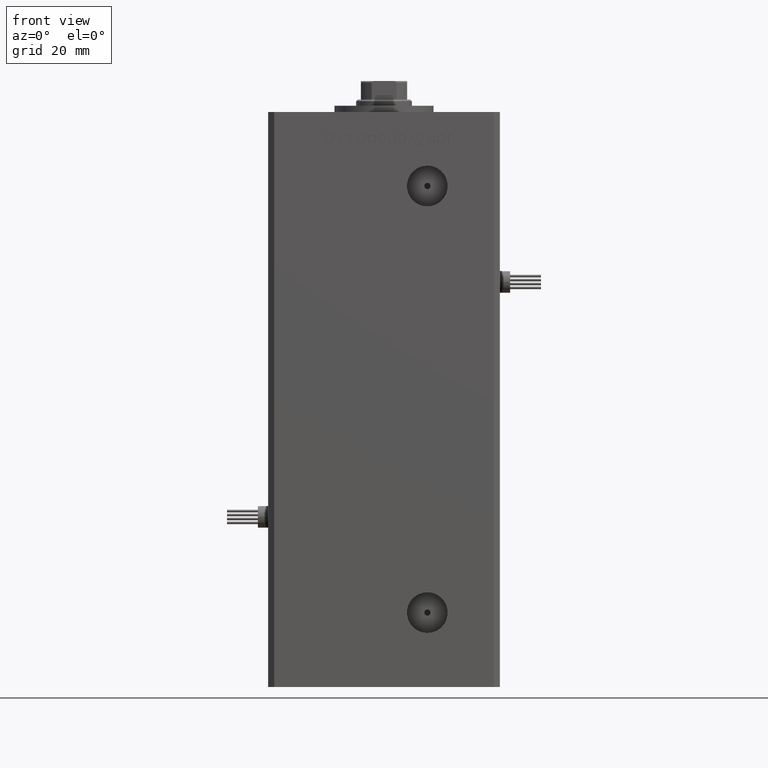
[diagram: clean part render]
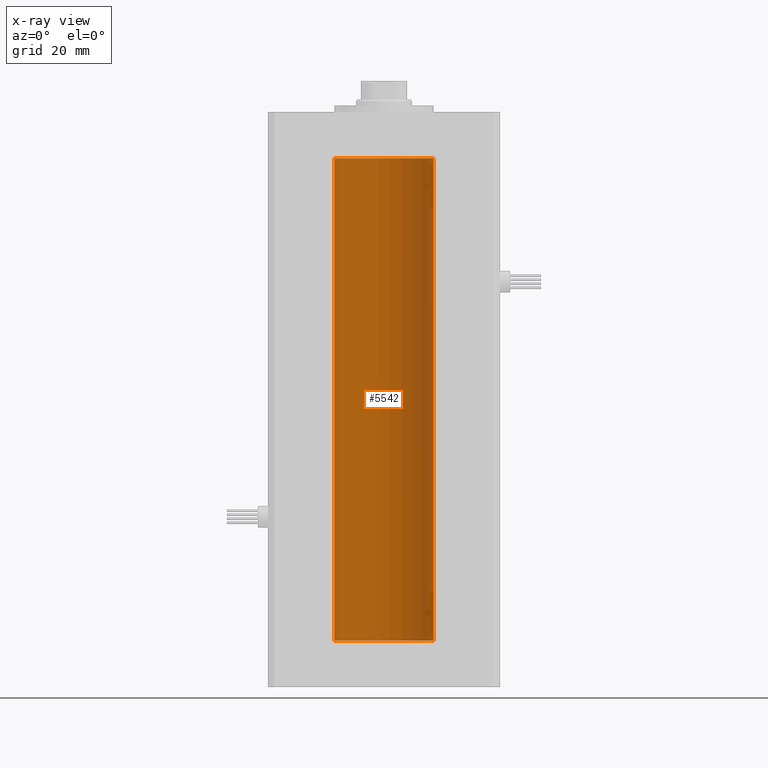
[diagram: x-ray — body ghosted, one internal face saturated and labeled with its STEP entity id]
A machine part, front view, then the same camera in x-ray: the body is ghosted and one INTERNAL B-rep face — a face not visible from any outside direction — is saturated and labeled: STEP entity #5542.
In plain terms, the highlighted cylindrical surface (partial cylindrical patch) has radius 16 mm, axis along (-0, -0, -1).
Its self-contained STEP definition (entity closure, byte-faithful):
#2502 = EDGE_CURVE ( 'NONE', #44289, #28513, #19287, .T. ) ;
#5491 = CARTESIAN_POINT ( 'NONE',  ( 0.000000000000000000, 0.000000000000000000, 156.0000000000000000 ) ) ;
#5542 = ADVANCED_FACE ( 'NONE', ( #35645 ), #9686, .F. ) ;
#6962 = CARTESIAN_POINT ( 'NONE',  ( 0.000000000000000000, 0.000000000000000000, 156.0000000000000000 ) ) ;
#8902 = VECTOR ( 'NONE', #17369, 1000.000000000000000 ) ;
#9000 = CARTESIAN_POINT ( 'NONE',  ( -16.00000000000000000, 0.000000000000000000, 156.0000000000000000 ) ) ;
#9006 = DIRECTION ( 'NONE',  ( 1.000000000000000000, 0.000000000000000000, 0.000000000000000000 ) ) ;
#9686 = CYLINDRICAL_SURFACE ( 'NONE', #54363, 16.00000000000000000 ) ;
#10046 = DIRECTION ( 'NONE',  ( -0.000000000000000000, 0.000000000000000000, 1.000000000000000000 ) ) ;
#14491 = DIRECTION ( 'NONE',  ( 1.000000000000000000, 0.000000000000000000, 0.000000000000000000 ) ) ;
#16311 = AXIS2_PLACEMENT_3D ( 'NONE', #6962, #10046, #14491 ) ;
#17088 = CARTESIAN_POINT ( 'NONE',  ( -16.00000000000000000, 0.000000000000000000, 156.0000000000000000 ) ) ;
#17369 = DIRECTION ( 'NONE',  ( -0.000000000000000000, -0.000000000000000000, -1.000000000000000000 ) ) ;
#18909 = CARTESIAN_POINT ( 'NONE',  ( 16.00000000000000000, 1.959434878635765131E-15, 156.0000000000000000 ) ) ;
#19065 = ORIENTED_EDGE ( 'NONE', *, *, #2502, .F. ) ;
#19287 = LINE ( 'NONE', #52533, #35653 ) ;
#21869 = ORIENTED_EDGE ( 'NONE', *, *, #43427, .T. ) ;
#22043 = CIRCLE ( 'NONE', #28299, 16.00000000000000000 ) ;
#22068 = ORIENTED_EDGE ( 'NONE', *, *, #22137, .F. ) ;
#22110 = LINE ( 'NONE', #9000, #8902 ) ;
#22137 = EDGE_CURVE ( 'NONE', #28513, #33714, #22043, .T. ) ;
#27638 = VERTEX_POINT ( 'NONE', #17088 ) ;
#27693 = EDGE_CURVE ( 'NONE', #27638, #33714, #22110, .T. ) ;
#28299 = AXIS2_PLACEMENT_3D ( 'NONE', #43347, #34702, #9006 ) ;
#28513 = VERTEX_POINT ( 'NONE', #42756 ) ;
#30779 = CARTESIAN_POINT ( 'NONE',  ( -16.00000000000000000, 0.000000000000000000, 0.000000000000000000 ) ) ;
#33714 = VERTEX_POINT ( 'NONE', #30779 ) ;
#34702 = DIRECTION ( 'NONE',  ( -0.000000000000000000, 0.000000000000000000, 1.000000000000000000 ) ) ;
#35071 = CIRCLE ( 'NONE', #16311, 16.00000000000000000 ) ;
#35373 = DIRECTION ( 'NONE',  ( -0.000000000000000000, -0.000000000000000000, -1.000000000000000000 ) ) ;
#35645 = FACE_OUTER_BOUND ( 'NONE', #42154, .T. ) ;
#35653 = VECTOR ( 'NONE', #48898, 1000.000000000000000 ) ;
#35863 = ORIENTED_EDGE ( 'NONE', *, *, #27693, .T. ) ;
#40120 = DIRECTION ( 'NONE',  ( -1.000000000000000000, 0.000000000000000000, 0.000000000000000000 ) ) ;
#42154 = EDGE_LOOP ( 'NONE', ( #19065, #21869, #35863, #22068 ) ) ;
#42756 = CARTESIAN_POINT ( 'NONE',  ( 16.00000000000000000, 1.959434878635765131E-15, 0.000000000000000000 ) ) ;
#43347 = CARTESIAN_POINT ( 'NONE',  ( 0.000000000000000000, 0.000000000000000000, 0.000000000000000000 ) ) ;
#43427 = EDGE_CURVE ( 'NONE', #44289, #27638, #35071, .T. ) ;
#44289 = VERTEX_POINT ( 'NONE', #18909 ) ;
#48898 = DIRECTION ( 'NONE',  ( -0.000000000000000000, -0.000000000000000000, -1.000000000000000000 ) ) ;
#52533 = CARTESIAN_POINT ( 'NONE',  ( 16.00000000000000000, 1.959434878635765131E-15, 156.0000000000000000 ) ) ;
#54363 = AXIS2_PLACEMENT_3D ( 'NONE', #5491, #35373, #40120 ) ;